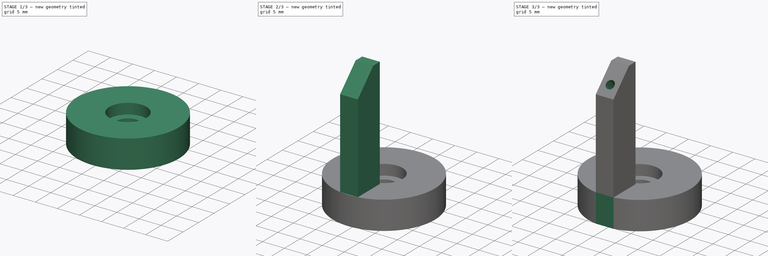
[diagram: build sequence overview — one tinted view per stage of 3, left to right]
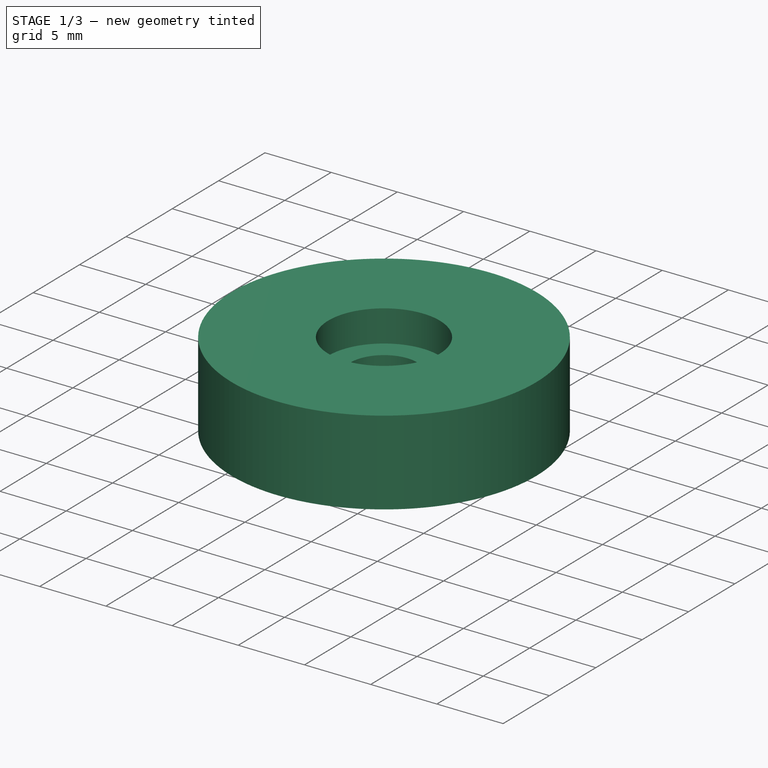
[diagram: stage 1 of 3 — iso view after this stage's code; geometry added in this stage tinted green]
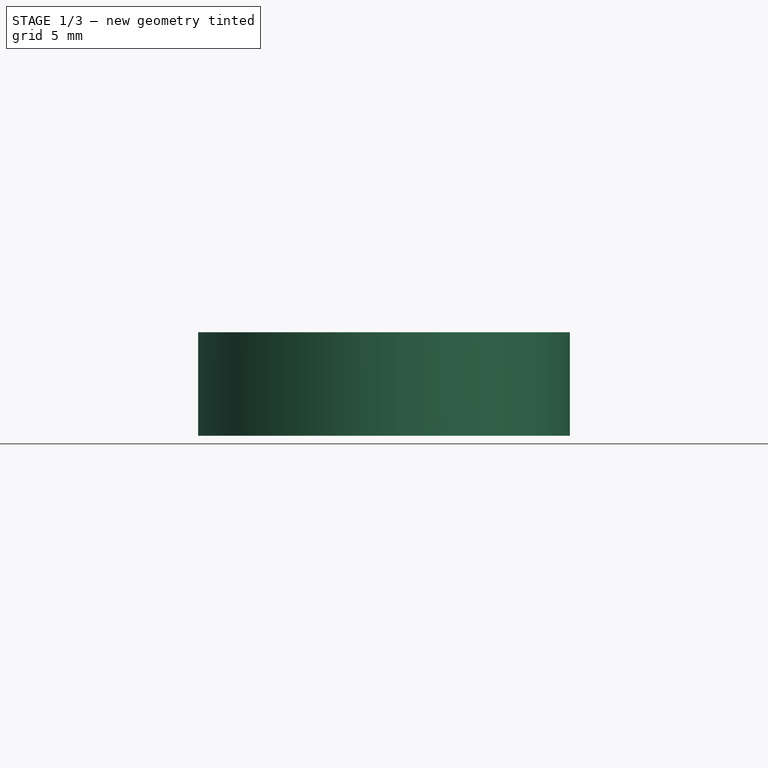
[diagram: stage 1 of 3 — front view after this stage's code; geometry added in this stage tinted green]
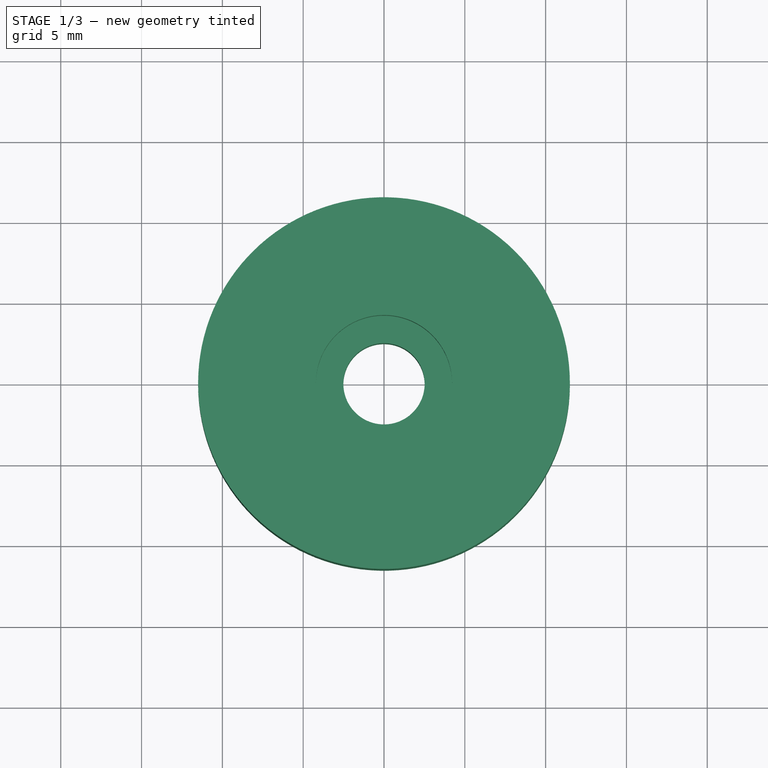
[diagram: stage 1 of 3 — top view after this stage's code; geometry added in this stage tinted green]
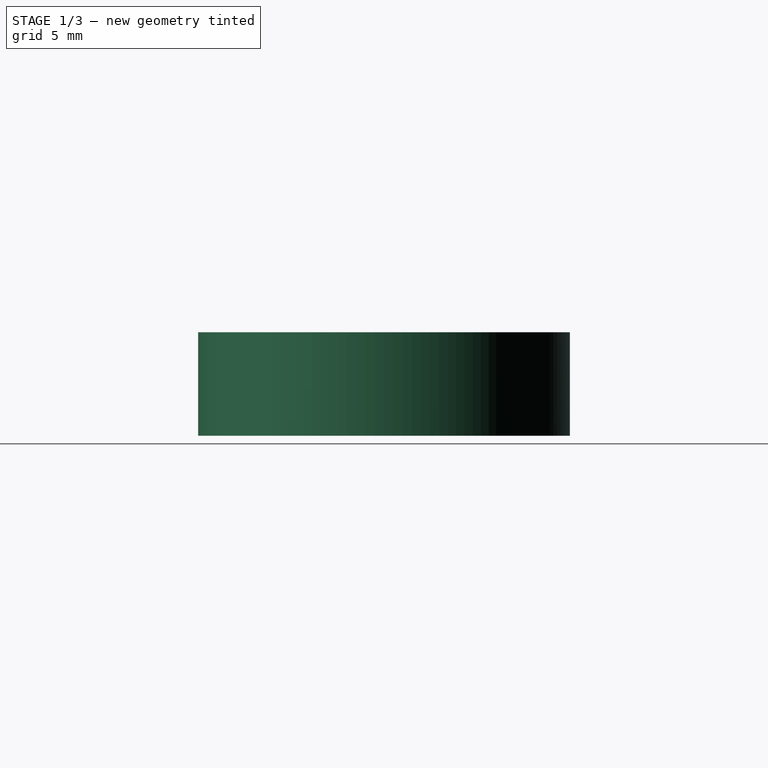
[diagram: stage 1 of 3 — right view after this stage's code; geometry added in this stage tinted green]
FCSTD DOCUMENT  (FreeCAD 0.21R33675 (Git))
Label: pitch_attachment
License: All rights reserved
LicenseURL: http://en.wikipedia.org/wiki/All_rights_reserved
objects: Sketcher::SketchObject×5, PartDesign::Plane×3, PartDesign::Pad×2, PartDesign::Pocket×2, Spreadsheet::Sheet×1, PartDesign::Hole×1, PartDesign::Chamfer×1, PartDesign::Body×1
note: 21 computed .brp shape members not serialized (recipe doc carries the construction recipe); baked Part::Feature solids carry a one-line shape summary decoded from their .brp

FEATURE [Spreadsheet::Sheet] Spreadsheet
  cells = A2='Design Parameters; A4='head_diameter_10_32; B4(head_diameter_10_32)==0.312 in; A5='head_thickness_10_32; B5(head_thickness_10_32)==0.063 in; A6='through_hole_diameter_10_32; B6(through_hole_diameter_10_32)==0.198 in; A7='counterbore_diameter_margin_10_32; B7(counterbore_diameter_margin_10_32)==0.25 mm; A8='counterbore_depth_margin_10_32; B8(counterbore_depth_margin_10_32)==0.8 mm; A9='counterbore_diameter_10_32; B9(counterbore_diameter_10_32)==head_diameter_10_32 + 2 * counterbore_diameter_margin_10_32; A10='counterbore_depth_10_32; B10(counterbore_depth_10_32)==head_thickness_10_32 + counterbore_depth_margin_10_32; A12='thickness_below_mount_screw; B12(thickness_below_mount_screw)==4 mm; A13='base_diameter; B13(base_diameter)==23 mm; A14='base_thickness; B14(base_thickness)==counterbore_depth_10_32 + thickness_below_mount_screw; A16='arm_width; B16(arm_width)==4 mm; A17='arm_length; B17(arm_length)==25 mm; A18='arm_top_datum_plane_offset; B18(arm_top_datum_plane_offset)==base_thickness + arm_length; A19='arm_front_datum_plane_offset; B19(arm_front_datum_plane_offset)==sqrt(pow(0.5 * base_diameter; 2) - pow(0.5 * arm_width; 2)); A21='fly_mount_pin_diameter; B21(fly_mount_pin_diameter)==1.7 mm; A22='fly_mount_pin_diameter_margin; B22(fly_mount_pin_diameter_margin)==0.1 mm; A23='fly_mount_pin_hole_diameter; B23(fly_mount_pin_hole_diameter)==fly_mount_pin_diameter + 2 * fly_mount_pin_diameter_margin; A24='fly_mount_pin_angle; B24(fly_mount_pin_angle)==45 deg; A25='fly_mount_pin_chamfer_size; B25(fly_mount_pin_chamfer_size)==5 mm; A26='fly_mount_pin_length; B26(fly_mount_pin_length)==4 mm; A27='fly_mount_pin_depth_margin; B27(fly_mount_pin_depth_margin)==0.5 mm; A28='fly_mount_pin_hole_depth; B28(fly_mount_pin_hole_depth)==fly_mount_pin_length + fly_mount_pin_depth_margin; A29='fly_mount_pin_offset_from_edge; B29(fly_mount_pin_offset_from_edge)==1.5 * fly_mount_pin_diameter
FEATURE [Sketcher::SketchObject] Sketch  label="BaseSketch"
  FullyConstrained = true
  MapMode = 5
  Support = -> [XY_Plane]
  expr: Constraints[1] = Spreadsheet.base_diameter
  sketch-geometry (1):
    g0: Circle CenterX=0 CenterY=0 CenterZ=0 NormalX=0 NormalY=0 NormalZ=1 AngleXU=0 Radius=11.5
  constraints (2):
    c: Coincident(g0,g-1)
    c: Diameter(g0) = 23
FEATURE [PartDesign::Pad] Pad  label="BasePad"
  Direction = (0,0,1)
  Length = 6.4002
  Length2 = 10
  Profile = -> Sketch
  ReferenceAxis = -> Sketch [N_Axis]
  Type = 0
  expr: Length = Spreadsheet.base_thickness
FEATURE [PartDesign::Plane] DatumPlane  label="BaseTopDatumPlane"
  AttachmentOffset = pos=(0,0,6.4002) rot=(0,0,1;0rad)
  Length = 60
  MapMode = 5
  Placement = pos=(0,0,6.4002) rot=(0,0,1;0rad)
  ResizeMode = 0
  Support = -> [XY_Plane]
  Width = 60
  expr: .AttachmentOffset.Base.z = Spreadsheet.base_thickness
FEATURE [Sketcher::SketchObject] Sketch001  label="BaseMountHoleSketch"
  FullyConstrained = true
  MapMode = 5
  Placement = pos=(0,0,6.4002) rot=(0,0,1;0rad)
  Support = -> [DatumPlane]
  expr: Constraints[1] = Spreadsheet.through_hole_diameter_10_32
  sketch-geometry (1):
    g0: Circle CenterX=0 CenterY=0 CenterZ=0 NormalX=0 NormalY=0 NormalZ=1 AngleXU=0 Radius=2.5146
  constraints (2):
    c: Coincident(g0,g-1)
    c: Diameter(g0) = 5.0292
FEATURE [PartDesign::Hole] Hole  label="BaseMountHole"
  BaseFeature = -> Pad
  CustomThreadClearance = 0
  Depth = 66.9642
  DepthType = 1
  Diameter = 5.0292
  DrillForDepth = false
  DrillPoint = 1
  DrillPointAngle = 118
  HoleCutCountersinkAngle = 90
  HoleCutCustomValues = false
  HoleCutDepth = 2.4002
  HoleCutDiameter = 8.4248
  HoleCutType = 1
  ModelThread = false
  Profile = -> Sketch001
  Tapered = false
  TaperedAngle = 90
  ThreadClass = 0
  ThreadDepth = 66.9642
  ThreadDepthType = 0
  ThreadDirection = 0
  ThreadFit = 1
  ThreadSize = 0
  ThreadType = 0
  Threaded = false
  UseCustomThreadClearance = false
  expr: Diameter = Spreadsheet.through_hole_diameter_10_32
  expr: HoleCutDepth = Spreadsheet.counterbore_depth_10_32
  expr: HoleCutDiameter = Spreadsheet.counterbore_diameter_10_32
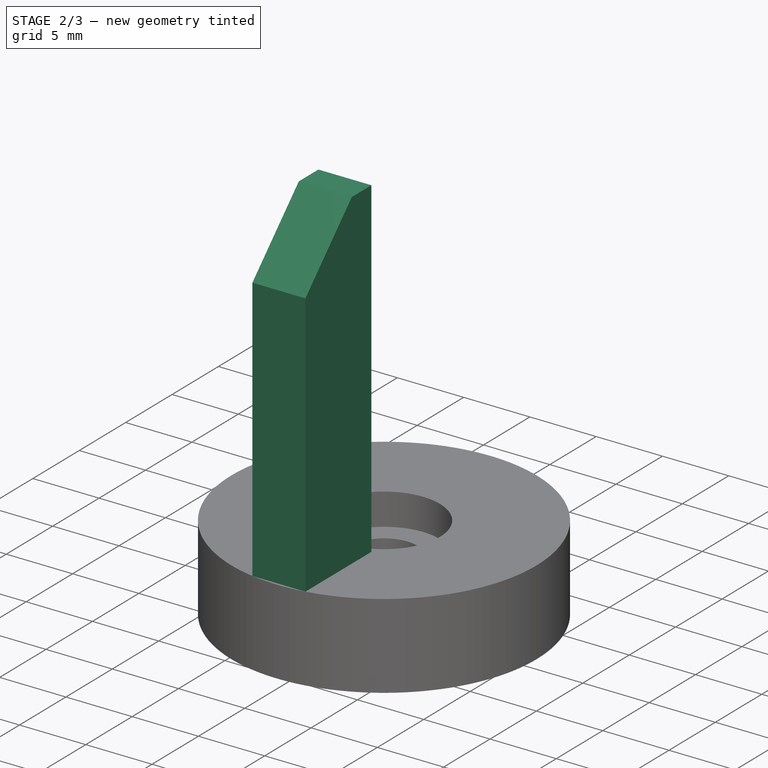
[diagram: stage 2 of 3 — iso view after this stage's code; geometry added in this stage tinted green]
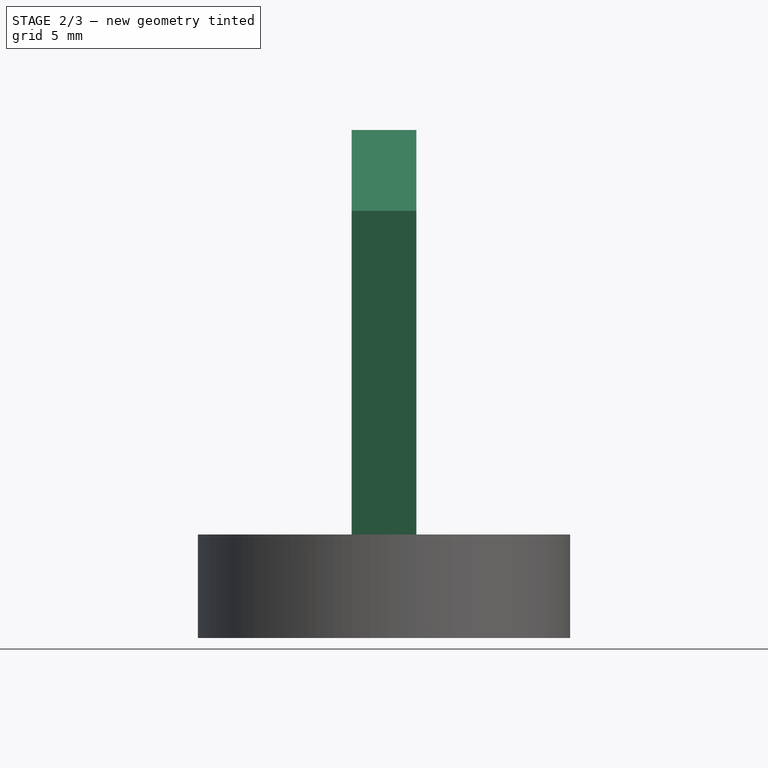
[diagram: stage 2 of 3 — front view after this stage's code; geometry added in this stage tinted green]
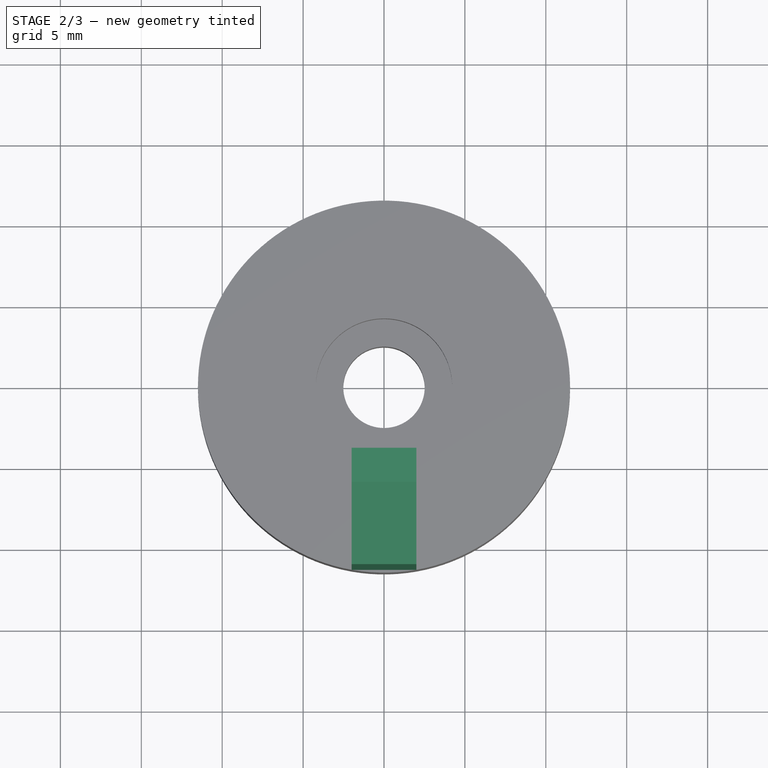
[diagram: stage 2 of 3 — top view after this stage's code; geometry added in this stage tinted green]
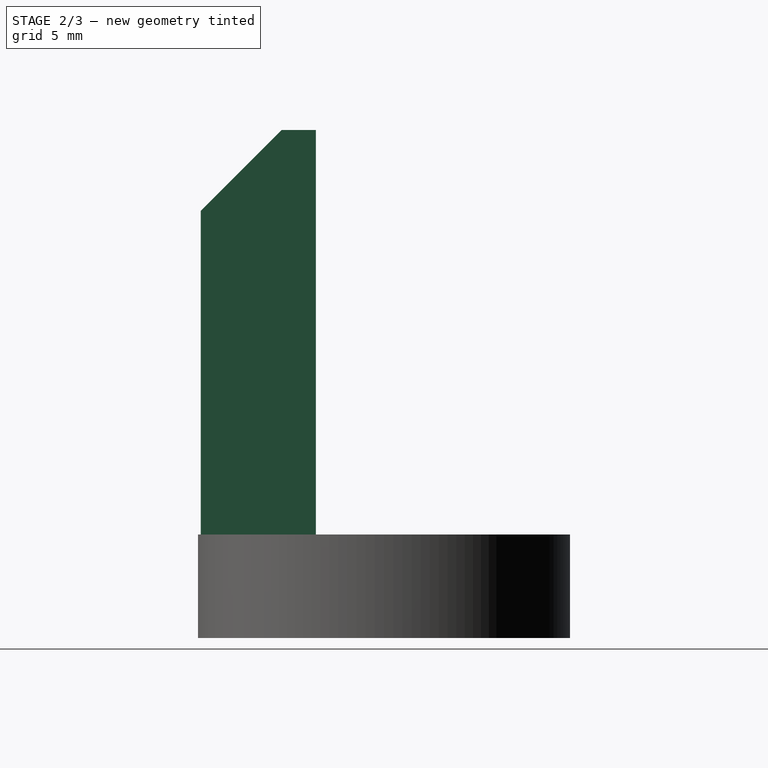
[diagram: stage 2 of 3 — right view after this stage's code; geometry added in this stage tinted green]
FEATURE [Sketcher::SketchObject] Sketch002  label="ArmSketch"
  FullyConstrained = true
  MapMode = 5
  Placement = pos=(0,0,6.4002) rot=(0,0,1;0rad)
  Support = -> [DatumPlane]
  expr: Constraints[15] = Spreadsheet.base_diameter * 0.5
  expr: Constraints[4] = Spreadsheet.counterbore_diameter_10_32 * 0.5
  expr: Constraints[5] = Spreadsheet.base_diameter * 0.5
  expr: Constraints[8] = Spreadsheet.arm_width
  sketch-geometry (6):
    g0: LineSegment StartX=0 StartY=0 StartZ=0 EndX=0 EndY=-4.2124 EndZ=0
    g1: LineSegment StartX=0 StartY=-4.2124 StartZ=0 EndX=0 EndY=-11.5 EndZ=0
    g2: LineSegment StartX=-2 StartY=-4.2124 StartZ=0 EndX=2 EndY=-4.2124 EndZ=0
    g3: LineSegment StartX=-2 StartY=-4.2124 StartZ=0 EndX=-2 EndY=-11.3248 EndZ=0
    g4: LineSegment StartX=2 StartY=-4.2124 StartZ=0 EndX=2 EndY=-11.3248 EndZ=0
    g5: LineSegment StartX=-2 StartY=-11.3248 StartZ=0 EndX=2 EndY=-11.3248 EndZ=0
  constraints (16):
    c: Coincident(g-1,g0)
    c: Coincident(g0,g1)
    c: Vertical(g0)
    c: Vertical(g1)
    c: DistanceY(g0,g0) = 4.2124
    c: DistanceY(g1,g0) = 11.5
    c: Symmetric(g2,g2,g0)
    c: Horizontal(g2)
    c: DistanceX(g2,g2) = 4
    c: Coincident(g3,g2)
    c: Vertical(g3)
    c: Coincident(g4,g2)
    c: Coincident(g5,g3)
    c: Coincident(g5,g4)
    c: Symmetric(g3,g4,g1)
    c: Distance(g3,g0) = 11.5
FEATURE [PartDesign::Pad] Pad001  label="ArmPad"
  BaseFeature = -> Hole
  Direction = (0,0,1)
  Length = 25
  Length2 = 10
  Profile = -> Sketch002
  ReferenceAxis = -> Sketch002 [N_Axis]
  Type = 0
  expr: Length = Spreadsheet.arm_length
FEATURE [PartDesign::Plane] DatumPlane001  label="ArmTopDatumPlane"
  AttachmentOffset = pos=(0,0,31.4002) rot=(0,0,1;0rad)
  Length = 60
  MapMode = 5
  Placement = pos=(0,0,31.4002) rot=(0,0,1;0rad)
  ResizeMode = 0
  Support = -> [XY_Plane]
  Width = 60
  expr: .AttachmentOffset.Base.z = Spreadsheet.arm_top_datum_plane_offset
FEATURE [PartDesign::Plane] DatumPlane002  label="ArmFrontDatumPlane"
  AttachmentOffset = pos=(0,0,11.3248) rot=(0,0,1;0rad)
  Length = 60.6208
  MapMode = 5
  Placement = pos=(0,-11.3248,-2.5e-15) rot=(1,0,0;1.5708rad)
  ResizeMode = 0
  Support = -> [XZ_Plane]
  Width = 67.021
  expr: .AttachmentOffset.Base.z = Spreadsheet.arm_front_datum_plane_offset
FEATURE [PartDesign::Chamfer] Chamfer  label="MountPinChamfer"
  Angle = 45
  Base = -> Pad001 [Edge25]
  BaseFeature = -> Pad001
  ChamferType = 2
  FlipDirection = false
  Size = 5
  Size2 = 1
  SupportTransform = false
  UseAllEdges = false
  expr: Angle = Spreadsheet.fly_mount_pin_angle
  expr: Size = Spreadsheet.fly_mount_pin_chamfer_size
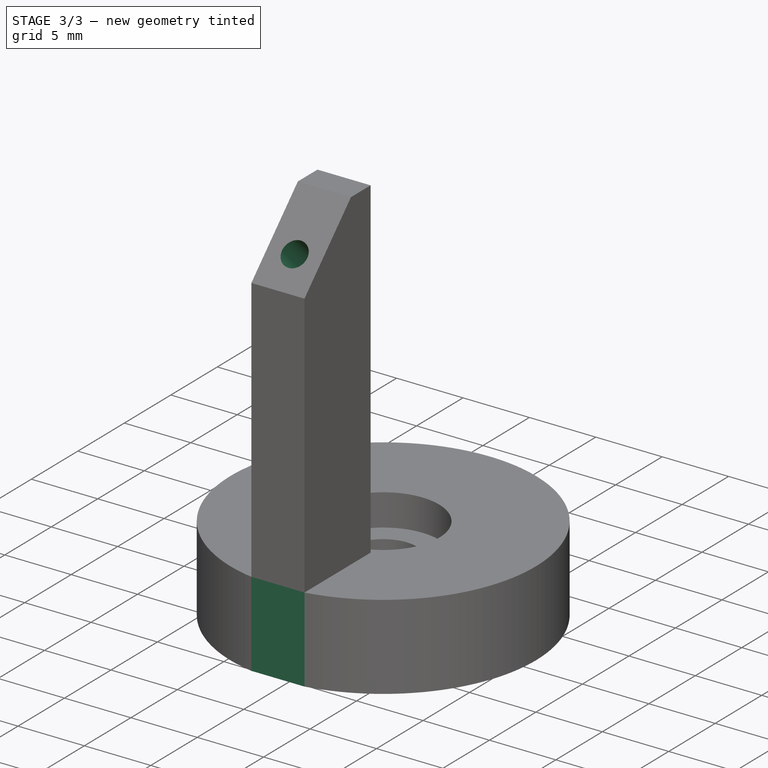
[diagram: stage 3 of 3 — iso view after this stage's code; geometry added in this stage tinted green]
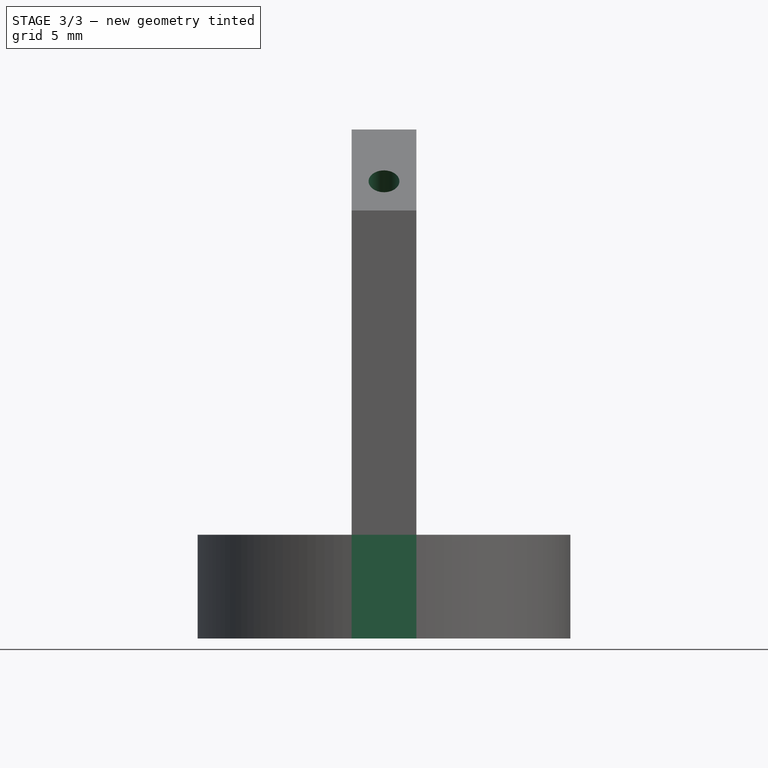
[diagram: stage 3 of 3 — front view after this stage's code; geometry added in this stage tinted green]
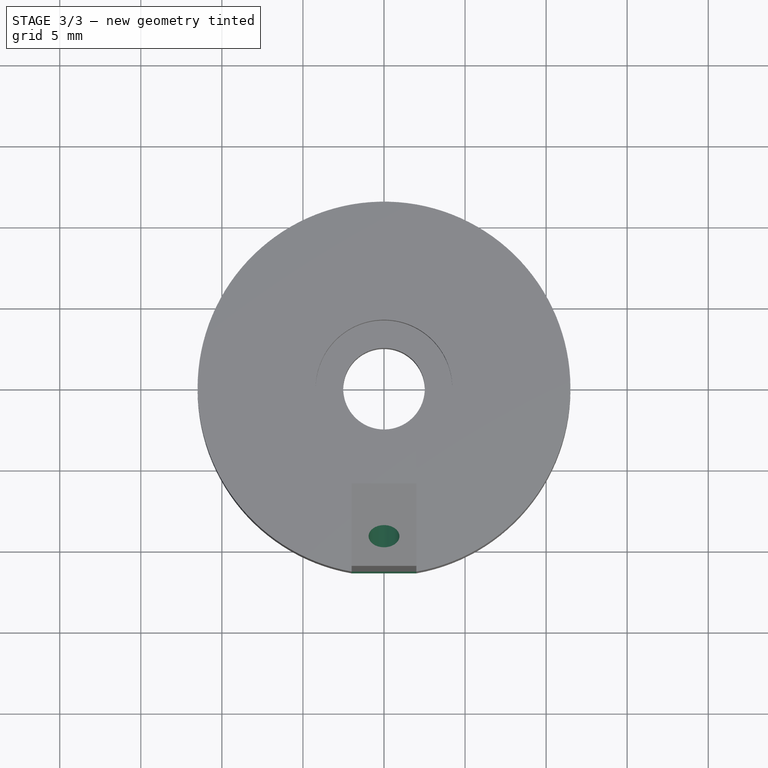
[diagram: stage 3 of 3 — top view after this stage's code; geometry added in this stage tinted green]
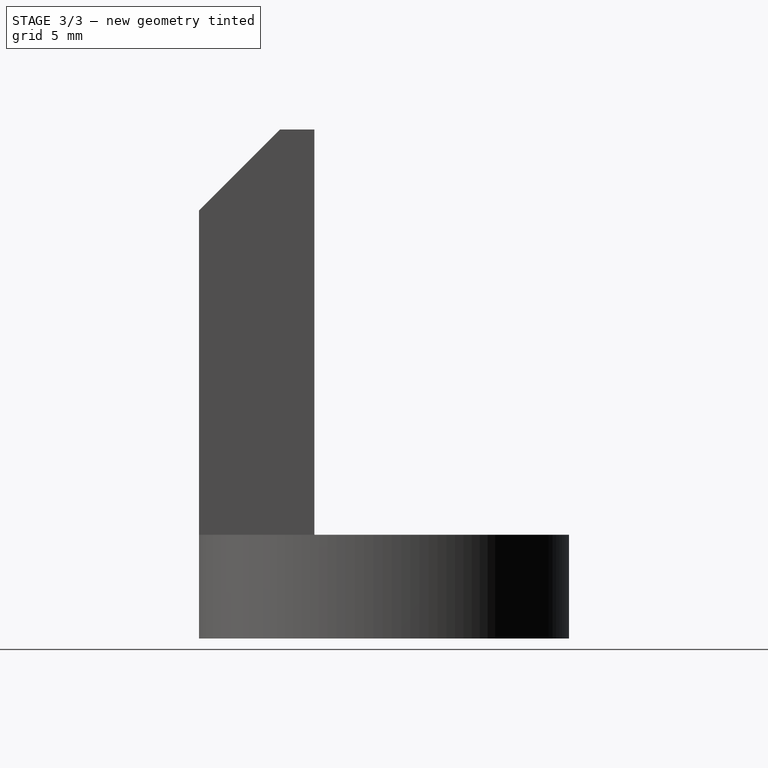
[diagram: stage 3 of 3 — right view after this stage's code; geometry added in this stage tinted green]
FEATURE [Sketcher::SketchObject] Sketch003  label="FlyMountPinHoleSketch"
  ExternalGeometry = -> [Chamfer]
  FullyConstrained = true
  MapMode = 5
  Placement = pos=(0,-18.8625,18.8625) rot=(1,0,0;0.785398rad)
  Support = -> [Chamfer]
  expr: Constraints[3] = Spreadsheet.fly_mount_pin_hole_diameter
  expr: Constraints[5] = Spreadsheet.fly_mount_pin_offset_from_edge
  sketch-geometry (3):
    g0: LineSegment StartX=0 StartY=17.731 StartZ=0 EndX=0 EndY=10.66 EndZ=0
    g1: GeomPoint X=0 Y=13.21 Z=0
    g2: Circle CenterX=0 CenterY=13.21 CenterZ=0 NormalX=0 NormalY=0 NormalZ=1 AngleXU=0 Radius=0.95
  constraints (6):
    c: Symmetric(g-4,g-4,g0)
    c: Symmetric(g-3,g-3,g0)
    c: Coincident(g2,g1)
    c: Diameter(g2) = 1.9
    c: PointOnObject(g2,g0)
    c: DistanceY(g0,g2) = 2.55
FEATURE [PartDesign::Pocket] Pocket  label="FlyMountPinHolePocket"
  BaseFeature = -> Chamfer
  Direction = (0,0.707107,-0.707107)
  Length = 4.5
  Length2 = 5
  Profile = -> Sketch003
  ReferenceAxis = -> Sketch003 [N_Axis]
  Type = 0
  expr: Length = Spreadsheet.fly_mount_pin_hole_depth
FEATURE [Sketcher::SketchObject] Sketch004  label="ArmCutBackSketch"
  FullyConstrained = true
  MapMode = 5
  Placement = pos=(0,0,6.4002) rot=(0,0,1;0rad)
  Support = -> [DatumPlane]
  expr: Constraints[1] = Spreadsheet.base_diameter
  expr: Constraints[5] = Spreadsheet.arm_width
  sketch-geometry (2):
    g0: ArcOfCircle CenterX=0 CenterY=0 CenterZ=0 NormalX=0 NormalY=0 NormalZ=1 AngleXU=0 Radius=11.5 StartAngle=4.53759 EndAngle=4.88719
    g1: LineSegment StartX=-2 StartY=-11.3248 StartZ=0 EndX=2 EndY=-11.3248 EndZ=0
  constraints (6):
    c: Coincident(g0,g-1)
    c: Diameter(g0) = 23
    c: Coincident(g1,g0)
    c: Coincident(g1,g0)
    c: Horizontal(g1)
    c: DistanceX(g1,g1) = 4
FEATURE [PartDesign::Pocket] Pocket001  label="ArmCutBackPocket"
  BaseFeature = -> Pocket
  Direction = (0,0,-1)
  Length = 5
  Length2 = 5
  Profile = -> Sketch004
  ReferenceAxis = -> Sketch004 [N_Axis]
  Type = 1
FEATURE [PartDesign::Body] Body
  Group = -> [Sketch,Pad,DatumPlane,Sketch001,Hole,Sketch002,Pad001,DatumPlane001,DatumPlane002,Chamfer,Sketch003,Pocket,Sketch004,Pocket001]
  Origin = -> Origin
  Tip = -> Pocket001
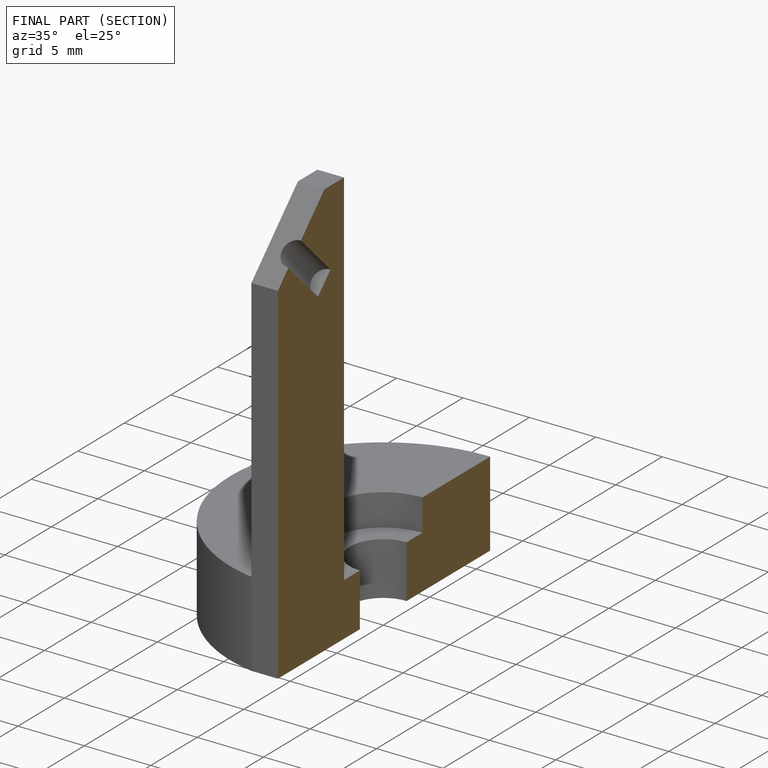
[diagram: finished part — half-section view (interior)]
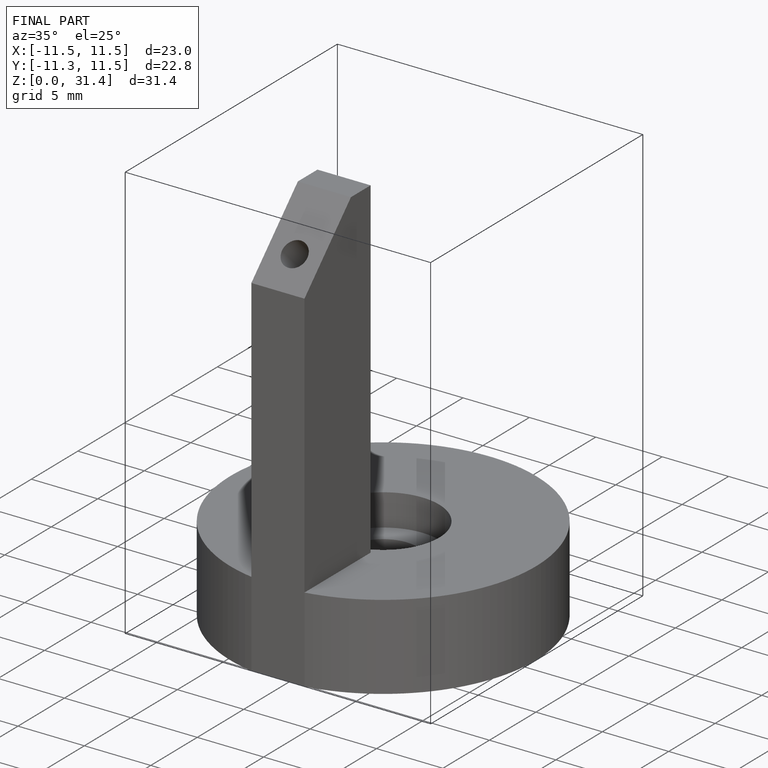
[diagram: finished part — iso view with bounding-box wireframe]
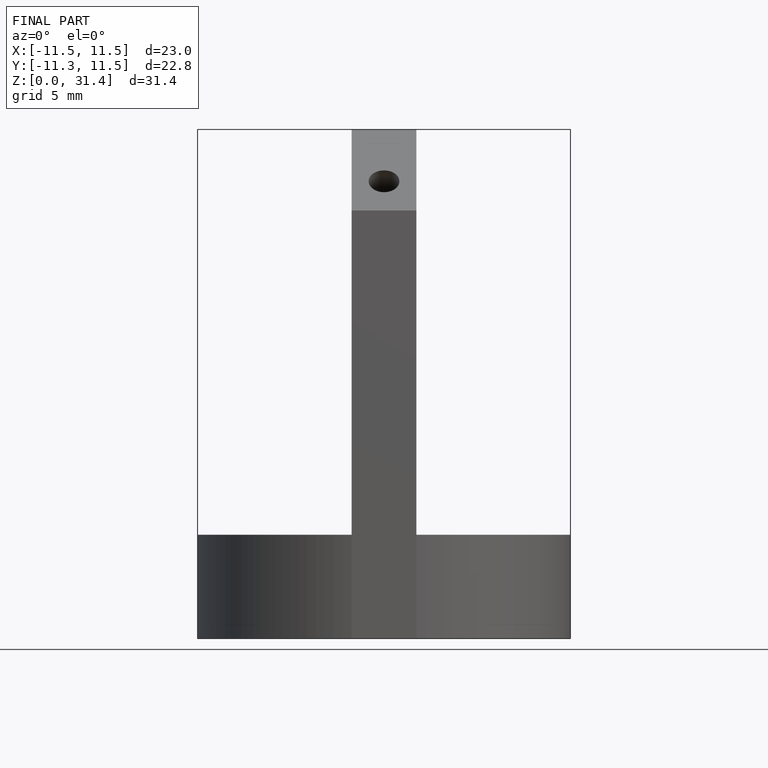
[diagram: finished part — front view with bounding-box wireframe]
